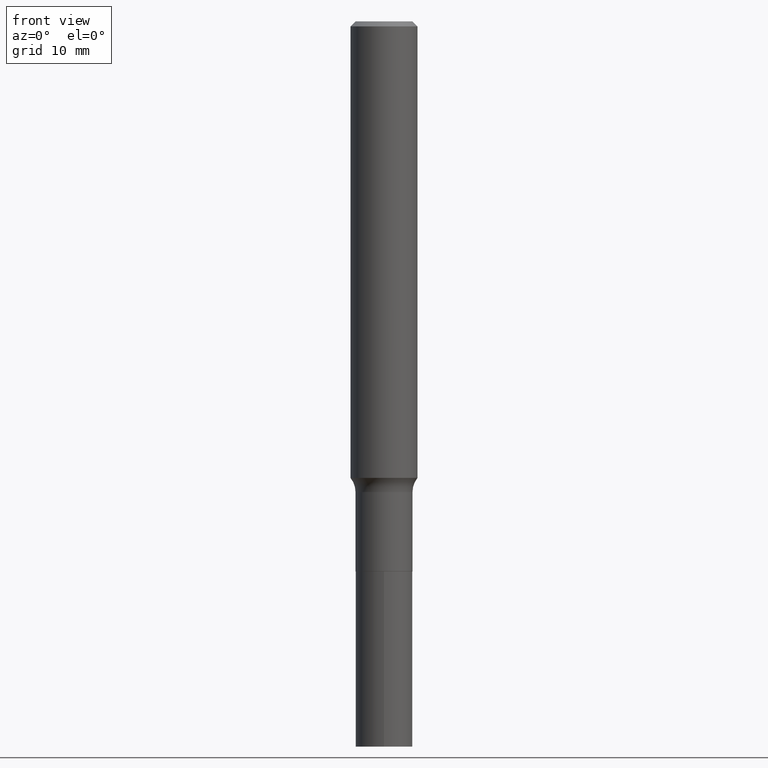
[diagram: clean part render]
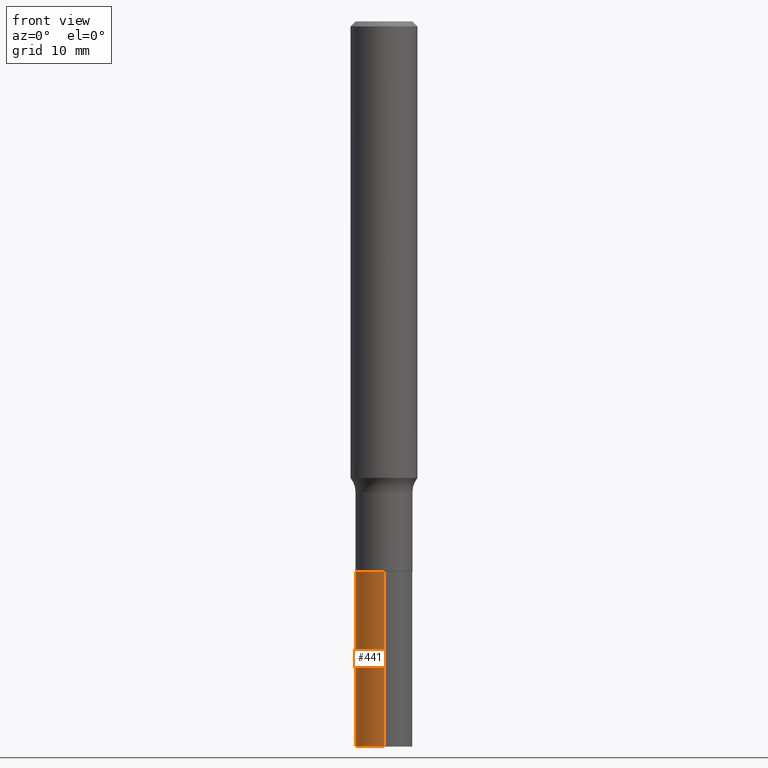
[diagram: same view with one face highlighted and labeled with its STEP entity id]
A machine part, front view. The second image highlights one B-rep face of the part: STEP entity #441.
In plain terms, the highlighted cylindrical surface (edge-blend (fillet) strip) has radius 2.5527 mm, axis along (-0, 0, 1).
Its self-contained STEP definition (entity closure, byte-faithful):
#8 = AXIS2_PLACEMENT_3D ( 'NONE', #133, #211, #420 ) ;
#10 = VERTEX_POINT ( 'NONE', #185 ) ;
#19 = ORIENTED_EDGE ( 'NONE', *, *, #363, .F. ) ;
#24 = FACE_OUTER_BOUND ( 'NONE', #149, .T. ) ;
#48 = ORIENTED_EDGE ( 'NONE', *, *, #272, .F. ) ;
#50 = ORIENTED_EDGE ( 'NONE', *, *, #447, .T. ) ;
#84 = CIRCLE ( 'NONE', #8, 0.1005000000000000060 ) ;
#86 = ORIENTED_EDGE ( 'NONE', *, *, #458, .T. ) ;
#123 = VECTOR ( 'NONE', #352, 39.37007874015748143 ) ;
#133 = CARTESIAN_POINT ( 'NONE',  ( 6.260876778854223555E-29, -8.931215480289977409E-15, -2.559100000000000374 ) ) ;
#143 = AXIS2_PLACEMENT_3D ( 'NONE', #454, #285, #429 ) ;
#148 = DIRECTION ( 'NONE',  ( -2.449801422602351827E-29, 3.485276785536480924E-15, 1.000000000000000000 ) ) ;
#149 = EDGE_LOOP ( 'NONE', ( #19, #50, #86, #48 ) ) ;
#180 = CARTESIAN_POINT ( 'NONE',  ( -7.017877491074223465E-16, -0.1005000000000067922, -1.941100000000000048 ) ) ;
#185 = CARTESIAN_POINT ( 'NONE',  ( 7.140954494389633452E-16, 0.1004999999999932336, -1.941100000000000492 ) ) ;
#202 = VECTOR ( 'NONE', #314, 39.37007874015748143 ) ;
#209 = CARTESIAN_POINT ( 'NONE',  ( -7.017877491074223465E-16, -0.1005000000000067922, -1.941100000000000048 ) ) ;
#211 = DIRECTION ( 'NONE',  ( -2.449801422602351827E-29, 3.485276785536480924E-15, 1.000000000000000000 ) ) ;
#212 = CIRCLE ( 'NONE', #313, 0.1005000000000000060 ) ;
#244 = LINE ( 'NONE', #209, #123 ) ;
#248 = CARTESIAN_POINT ( 'NONE',  ( 7.140954494389480611E-16, 0.1004999999999932336, -1.941100000000000492 ) ) ;
#272 = EDGE_CURVE ( 'NONE', #10, #433, #212, .T. ) ;
#285 = DIRECTION ( 'NONE',  ( -2.449801422602351827E-29, 3.485276785536480924E-15, 1.000000000000000000 ) ) ;
#313 = AXIS2_PLACEMENT_3D ( 'NONE', #417, #148, #466 ) ;
#314 = DIRECTION ( 'NONE',  ( -2.449801422602351547E-29, 3.485276785536480924E-15, 1.000000000000000000 ) ) ;
#343 = VERTEX_POINT ( 'NONE', #423 ) ;
#352 = DIRECTION ( 'NONE',  ( -2.449801422602351547E-29, 3.485276785536480924E-15, 1.000000000000000000 ) ) ;
#354 = LINE ( 'NONE', #248, #202 ) ;
#363 = EDGE_CURVE ( 'NONE', #343, #10, #354, .T. ) ;
#417 = CARTESIAN_POINT ( 'NONE',  ( 4.746899499685969430E-29, -6.777314426828430156E-15, -1.941100000000000270 ) ) ;
#420 = DIRECTION ( 'NONE',  ( -6.982962677686265922E-15, -1.000000000000000000, 5.436513420227388995E-15 ) ) ;
#422 = CARTESIAN_POINT ( 'NONE',  ( -7.017877491074071610E-16, -0.1005000000000089433, -2.559099999999999930 ) ) ;
#423 = CARTESIAN_POINT ( 'NONE',  ( 7.140954494389557524E-16, 0.1004999999999910826, -2.559100000000001263 ) ) ;
#429 = DIRECTION ( 'NONE',  ( -6.982962677686265922E-15, -1.000000000000000000, 2.718256710113694497E-15 ) ) ;
#433 = VERTEX_POINT ( 'NONE', #180 ) ;
#441 = ADVANCED_FACE ( 'NONE', ( #24 ), #467, .T. ) ;
#447 = EDGE_CURVE ( 'NONE', #343, #451, #84, .T. ) ;
#451 = VERTEX_POINT ( 'NONE', #422 ) ;
#454 = CARTESIAN_POINT ( 'NONE',  ( 4.746899499685969430E-29, -6.777314426828430156E-15, -1.941100000000000270 ) ) ;
#458 = EDGE_CURVE ( 'NONE', #451, #433, #244, .T. ) ;
#466 = DIRECTION ( 'NONE',  ( -6.982962677686265922E-15, -1.000000000000000000, 2.718256710113694497E-15 ) ) ;
#467 = CYLINDRICAL_SURFACE ( 'NONE', #143, 0.1005000000000000060 ) ;